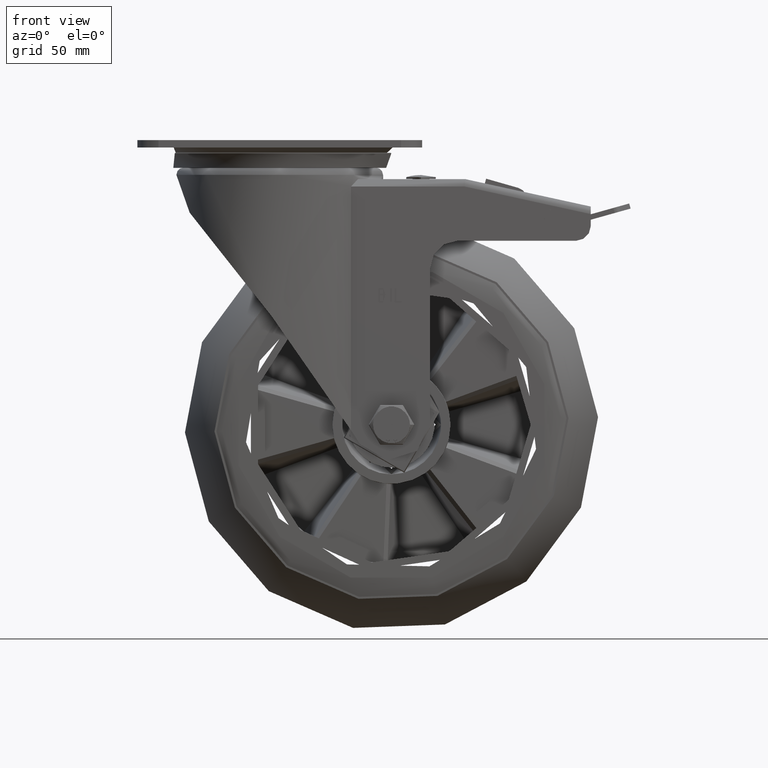
[diagram: clean part render]
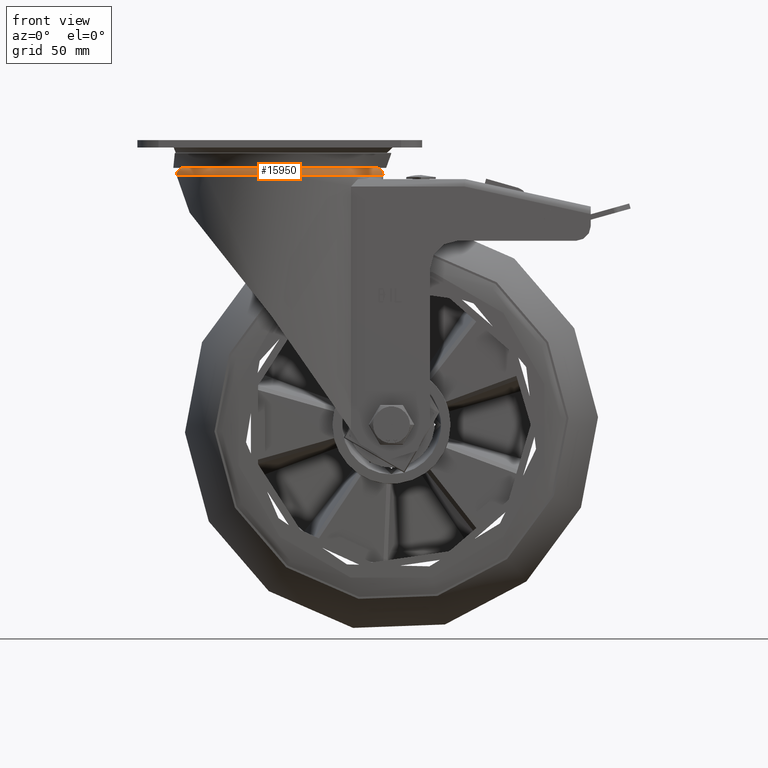
[diagram: same view with one face highlighted and labeled with its STEP entity id]
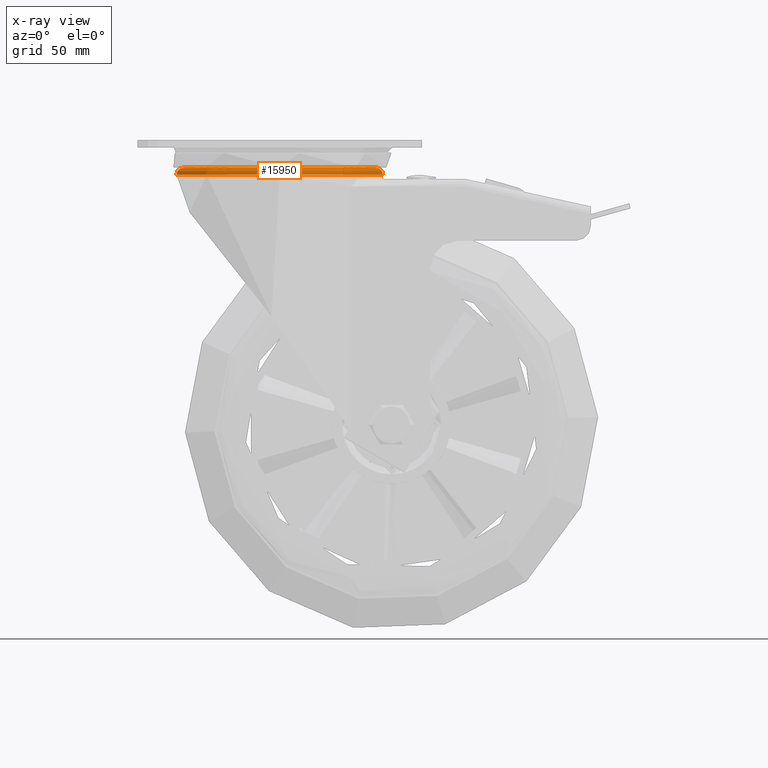
[diagram: x-ray of the same camera — body ghosted, the highlighted face saturated]
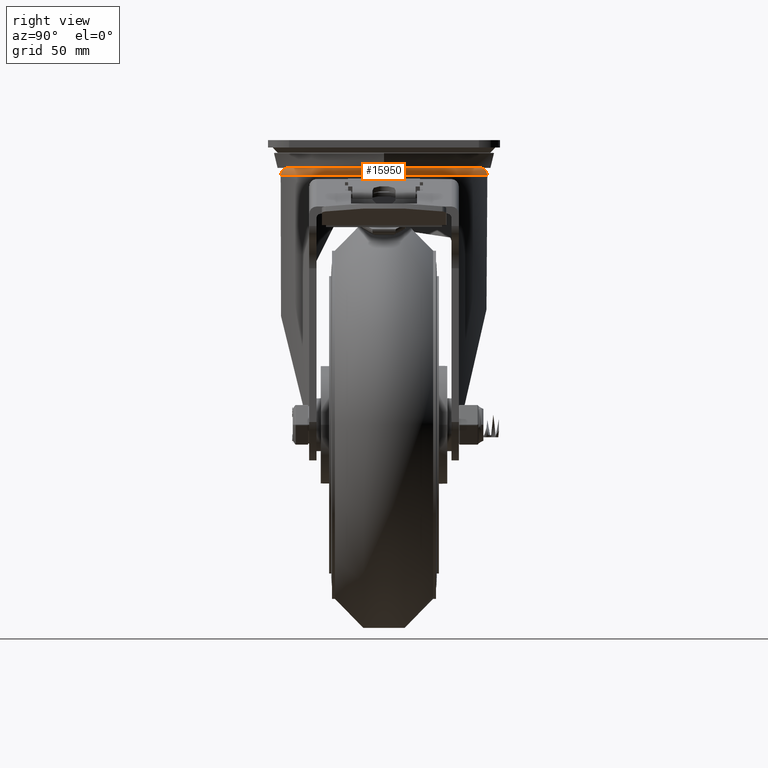
[diagram: same view with one face highlighted and labeled with its STEP entity id]
A machine part, front view. The second image highlights one B-rep face of the part: STEP entity #15950.
The next image is the same camera in x-ray: the body ghosted, the highlighted face saturated — about 0% of this face is hidden behind the body in this view.
A second angle (right view) of the same face is appended — the face is thin or edge-on in the first view.
In plain terms, the highlighted toroidal blend (fillet) surface has major radius 45.5 mm and minor (blend) radius 3.5 mm.
Its self-contained STEP definition (entity closure, byte-faithful):
#2081=TOROIDAL_SURFACE('',#17340,45.5,3.5);
#2206=FACE_OUTER_BOUND('',#3176,.T.);
#3176=EDGE_LOOP('',(#11495,#11496,#11497,#11498));
#6449=CIRCLE('',#17334,49.);
#6453=CIRCLE('',#17341,3.5);
#6454=CIRCLE('',#17342,45.5);
#7158=VERTEX_POINT('',#26075);
#7163=VERTEX_POINT('',#26141);
#8831=EDGE_CURVE('',#7158,#7158,#6449,.T.);
#8839=EDGE_CURVE('',#7158,#7163,#6453,.T.);
#8840=EDGE_CURVE('',#7163,#7163,#6454,.T.);
#11495=ORIENTED_EDGE('',*,*,#8831,.T.);
#11496=ORIENTED_EDGE('',*,*,#8839,.T.);
#11497=ORIENTED_EDGE('',*,*,#8840,.T.);
#11498=ORIENTED_EDGE('',*,*,#8839,.F.);
#15950=ADVANCED_FACE('',(#2206),#2081,.T.);
#17334=AXIS2_PLACEMENT_3D('',#26077,#19237,#19238);
#17340=AXIS2_PLACEMENT_3D('',#26140,#19252,#19253);
#17341=AXIS2_PLACEMENT_3D('',#26142,#19254,#19255);
#17342=AXIS2_PLACEMENT_3D('',#26143,#19256,#19257);
#19237=DIRECTION('center_axis',(0.,0.,1.));
#19238=DIRECTION('ref_axis',(1.,1.22464679914735E-16,0.));
#19252=DIRECTION('center_axis',(0.,0.,-1.));
#19253=DIRECTION('ref_axis',(-1.,0.,0.));
#19254=DIRECTION('center_axis',(-1.22464679914735E-16,-1.,0.));
#19255=DIRECTION('ref_axis',(1.,-1.22464679914735E-16,0.));
#19256=DIRECTION('center_axis',(0.,0.,-1.));
#19257=DIRECTION('ref_axis',(1.,1.22464679914735E-16,0.));
#26075=CARTESIAN_POINT('',(49.,6.00076931582203E-15,-16.5));
#26077=CARTESIAN_POINT('Origin',(0.,0.,-16.5));
#26140=CARTESIAN_POINT('Origin',(0.,0.,-16.5));
#26141=CARTESIAN_POINT('',(45.5,5.57214293612046E-15,-13.));
#26142=CARTESIAN_POINT('Origin',(45.5,-5.57214293612046E-15,-16.5));
#26143=CARTESIAN_POINT('Origin',(0.,0.,-13.));